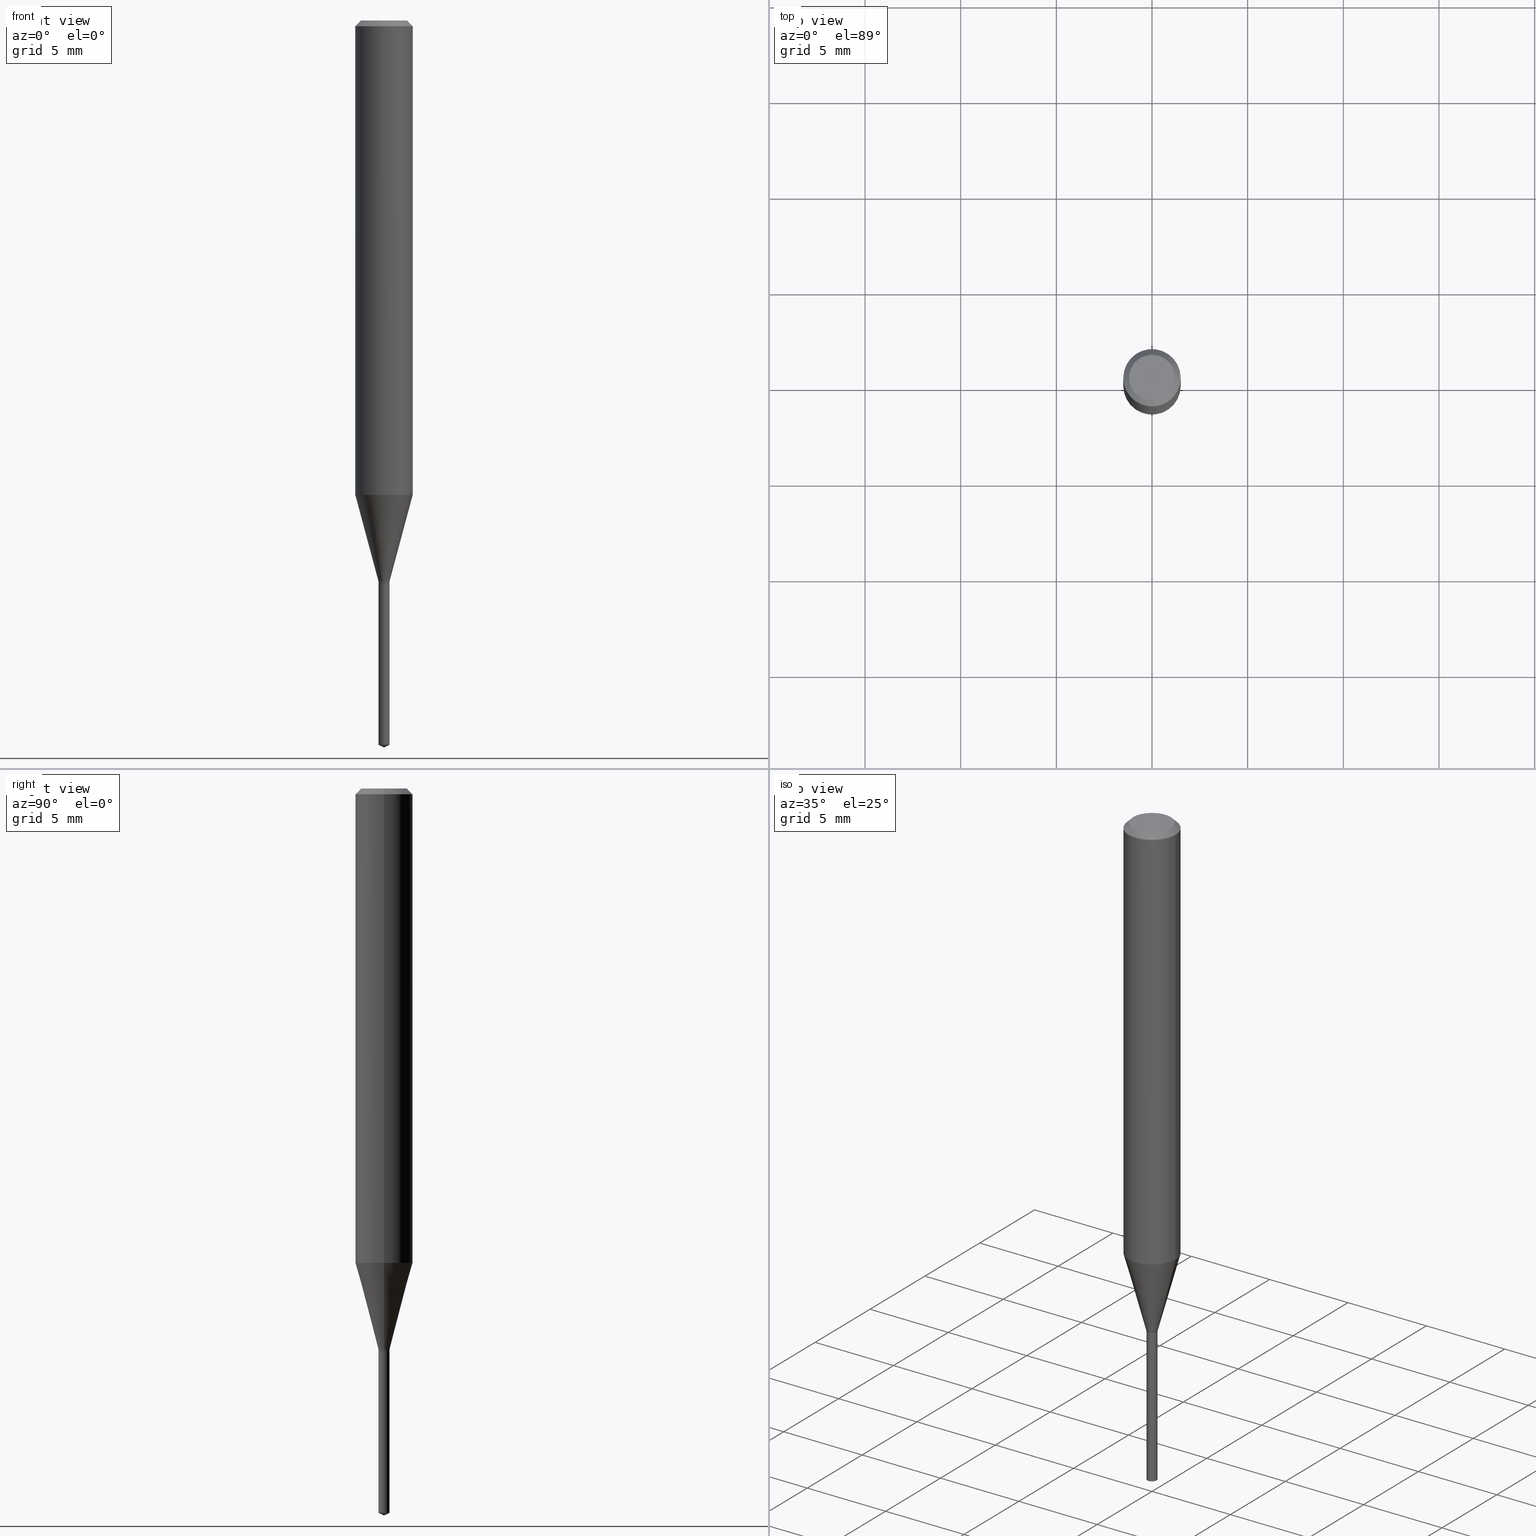
[diagram: canonical four-view strip — front | top / right | iso, engineering-drawing reading convention]
A machine part, canonical four-view strip (front | top / right | iso — engineering-drawing reading convention). The complete STEP part file that produces these views, byte-faithful:
ISO-10303-21;
HEADER;
FILE_DESCRIPTION (( 'STEP AP203' ),
    '1' );
FILE_NAME ('07777.STEP',
    '2024-04-24T02:48:42',
    ( '' ),
    ( '' ),
    'SwSTEP 2.0',
    'SolidWorks 2023',
    '' );
FILE_SCHEMA (( 'CONFIG_CONTROL_DESIGN' ));
ENDSEC;

DATA;
#1 = CARTESIAN_POINT ( 'NONE',  ( 0.05904999999999999832, -4.535783407291118600E-16, -0.01181000000000007565 ) ) ;
#2 = CC_DESIGN_PERSON_AND_ORGANIZATION_ASSIGNMENT ( #76, #336, ( #120 ) ) ;
#3 = ORIENTED_EDGE ( 'NONE', *, *, #462, .T. ) ;
#4 = CALENDAR_DATE ( 2024, 23, 4 ) ;
#5 = DIRECTION ( 'NONE',  ( -2.445468806185136597E-29, 3.491481338843145583E-15, 1.000000000000000000 ) ) ;
#6 = CARTESIAN_POINT ( 'NONE',  ( 8.100187187668790892E-17, 0.01139999999999595851, -1.157499999999999973 ) ) ;
#7 = DIRECTION ( 'NONE',  ( -2.445457056059012515E-29, 3.491498165692530705E-15, 1.000000000000000000 ) ) ;
#8 = LENGTH_MEASURE_WITH_UNIT ( LENGTH_MEASURE( 0.02539999999999999897 ), #144 );
#9 = LINE ( 'NONE', #302, #279 ) ;
#10 = DIRECTION ( 'NONE',  ( -2.445468806185136597E-29, 3.491481338843145583E-15, 1.000000000000000000 ) ) ;
#11 = DIRECTION ( 'NONE',  ( -6.982962677686267499E-15, -1.000000000000000000, 3.520397390770301620E-15 ) ) ;
#12 = EDGE_CURVE ( 'NONE', #470, #401, #247, .T. ) ;
#13 = AXIS2_PLACEMENT_3D ( 'NONE', #86, #20, #433 ) ;
#14 = VECTOR ( 'NONE', #443, 39.37007874015748854 ) ;
#15 = VERTEX_POINT ( 'NONE', #134 ) ;
#16 = ORIENTED_EDGE ( 'NONE', *, *, #59, .F. ) ;
#17 = CONICAL_SURFACE ( 'NONE', #119, 84.42940631927798734, 1.134464013796332438 ) ;
#18 = EDGE_LOOP ( 'NONE', ( #125, #187, #281, #206 ) ) ;
#19 = CARTESIAN_POINT ( 'NONE',  ( 2.822315549218265928E-29, -4.029518613158873887E-15, -1.154099999999999904 ) ) ;
#20 = DIRECTION ( 'NONE',  ( 2.445468806185136597E-29, -3.491481338843145583E-15, -1.000000000000000000 ) ) ;
#21 = ORIENTED_EDGE ( 'NONE', *, *, #300, .F. ) ;
#22 = VECTOR ( 'NONE', #330, 39.37007874015748143 ) ;
#23 = CARTESIAN_POINT ( 'NONE',  ( 2.830630143159295633E-29, -4.041389649710940900E-15, -1.157499999999999973 ) ) ;
#24 = EDGE_LOOP ( 'NONE', ( #210, #326, #434 ) ) ;
#25 = CARTESIAN_POINT ( 'NONE',  ( 8.100187187668787195E-17, 0.01139999999999479277, -1.490784092697033270 ) ) ;
#26 = ADVANCED_FACE ( 'NONE', ( #435 ), #293, .F. ) ;
#27 = ORIENTED_EDGE ( 'NONE', *, *, #197, .F. ) ;
#28 = CIRCLE ( 'NONE', #52, 0.01090000000000000170 ) ;
#29 = DIRECTION ( 'NONE',  ( -2.445457056059012515E-29, 3.491498165692530705E-15, 1.000000000000000000 ) ) ;
#30 = CARTESIAN_POINT ( 'NONE',  ( 2.830630143159295633E-29, -4.041389649710940900E-15, -1.157499999999999973 ) ) ;
#31 = APPROVAL_DATE_TIME ( #446, #427 ) ;
#32 = PERSON_AND_ORGANIZATION ( #43, #139 ) ;
#33 = DIRECTION ( 'NONE',  ( -2.445468806185136597E-29, 3.491481338843145583E-15, 1.000000000000000000 ) ) ;
#34 = CIRCLE ( 'NONE', #93, 0.05905000000000013710 ) ;
#35 = DATE_AND_TIME ( #380, #292 ) ;
#36 = AXIS2_PLACEMENT_3D ( 'NONE', #307, #5, #68 ) ;
#37 = LINE ( 'NONE', #107, #436 ) ;
#38 = EDGE_CURVE ( 'NONE', #426, #127, #34, .T. ) ;
#39 = VERTEX_POINT ( 'NONE', #25 ) ;
#40 = LINE ( 'NONE', #231, #14 ) ;
#41 = CARTESIAN_POINT ( 'NONE',  ( 0.000000000000000000, 0.000000000000000000, 0.000000000000000000 ) ) ;
#42 = CC_DESIGN_PERSON_AND_ORGANIZATION_ASSIGNMENT ( #32, #342, ( #423 ) ) ;
#43 = PERSON ( 'UNSPECIFIED', 'UNSPECIFIED', 'UNSPECIFIED', ('UNSPECIFIED'), ('UNSPECIFIED'), ('UNSPECIFIED') ) ;
#44 = CARTESIAN_POINT ( 'NONE',  ( -9.261917495037615480E-28, 1.322369467758159045E-13, 37.87397874015748300 ) ) ;
#45 = LINE ( 'NONE', #463, #241 ) ;
#46 = APPROVAL_PERSON_ORGANIZATION ( #180, #181, #439 ) ;
#47 = FACE_OUTER_BOUND ( 'NONE', #368, .T. ) ;
#48 = CARTESIAN_POINT ( 'NONE',  ( 3.658648301569888039E-29, -5.223630405692595388E-15, -1.496099999999999985 ) ) ;
#49 = ORIENTED_EDGE ( 'NONE', *, *, #300, .T. ) ;
#50 = FACE_OUTER_BOUND ( 'NONE', #83, .T. ) ;
#51 = CIRCLE ( 'NONE', #333, 0.01140000000000000041 ) ;
#52 = AXIS2_PLACEMENT_3D ( 'NONE', #30, #148, #182 ) ;
#53 = ORIENTED_EDGE ( 'NONE', *, *, #462, .F. ) ;
#54 = DIRECTION ( 'NONE',  ( -2.445468806185136597E-29, 3.491481338843145583E-15, 1.000000000000000000 ) ) ;
#55 = CARTESIAN_POINT ( 'NONE',  ( 2.830630143159295633E-29, -4.041389649710940900E-15, -1.157499999999999973 ) ) ;
#56 = ADVANCED_FACE ( 'NONE', ( #297 ), #66, .T. ) ;
#57 = ORIENTED_EDGE ( 'NONE', *, *, #339, .T. ) ;
#58 = CARTESIAN_POINT ( 'NONE',  ( 2.830630143159295633E-29, -4.041389649710940900E-15, -1.157499999999999973 ) ) ;
#59 = EDGE_CURVE ( 'NONE', #401, #470, #167, .T. ) ;
#60 = EDGE_LOOP ( 'NONE', ( #21, #166, #157, #27 ) ) ;
#61 = CONICAL_SURFACE ( 'NONE', #178, 0.01090000000000000170, 0.7853981633974119747 ) ;
#62 = DIRECTION ( 'NONE',  ( -2.445468806185136597E-29, 3.491481338843145583E-15, 1.000000000000000000 ) ) ;
#63 = CARTESIAN_POINT ( 'NONE',  ( -7.960577452559512197E-17, -0.01140000000000404232, -1.157499999999999973 ) ) ;
#64 = CYLINDRICAL_SURFACE ( 'NONE', #160, 0.01140000000000000041 ) ;
#65 = COORDINATED_UNIVERSAL_TIME_OFFSET ( 5, 0, .BEHIND. ) ;
#66 = CYLINDRICAL_SURFACE ( 'NONE', #381, 0.05905000000000006771 ) ;
#67 = APPROVAL_DATE_TIME ( #109, #400 ) ;
#68 = DIRECTION ( 'NONE',  ( 1.000000000000000000, -6.982962677686272233E-15, 0.000000000000000000 ) ) ;
#69 = CIRCLE ( 'NONE', #361, 0.05905000000000013710 ) ;
#70 = CARTESIAN_POINT ( 'NONE',  ( 2.829407408756202832E-29, -4.039643909041518608E-15, -1.156999999999999806 ) ) ;
#71 = ADVANCED_FACE ( 'NONE', ( #208 ), #354, .T. ) ;
#72 = DIRECTION ( 'NONE',  ( 1.000000000000000000, -6.982962677686266711E-15, 4.876185090822587894E-29 ) ) ;
#73 = COORDINATED_UNIVERSAL_TIME_OFFSET ( 5, 0, .BEHIND. ) ;
#74 = PLANE ( 'NONE',  #421 ) ;
#75 = AXIS2_PLACEMENT_3D ( 'NONE', #487, #418, #373 ) ;
#76 = PERSON_AND_ORGANIZATION ( #43, #139 ) ;
#77 = AXIS2_PLACEMENT_3D ( 'NONE', #191, #273, #459 ) ;
#78 = EDGE_CURVE ( 'NONE', #164, #401, #9, .T. ) ;
#79 = AXIS2_PLACEMENT_3D ( 'NONE', #202, #10, #233 ) ;
#80 = ORIENTED_EDGE ( 'NONE', *, *, #313, .T. ) ;
#81 = PRODUCT_RELATED_PRODUCT_CATEGORY ( 'detail', '', ( #423 ) ) ;
#82 = ORIENTED_EDGE ( 'NONE', *, *, #321, .F. ) ;
#83 = EDGE_LOOP ( 'NONE', ( #429, #367, #397, #82 ) ) ;
#84 = AXIS2_PLACEMENT_3D ( 'NONE', #466, #424, #275 ) ;
#85 = EDGE_LOOP ( 'NONE', ( #393, #108, #203 ) ) ;
#86 = CARTESIAN_POINT ( 'NONE',  ( 2.888098660104664642E-31, -4.123439461173780879E-17, -0.01181000000000007565 ) ) ;
#87 = EDGE_CURVE ( 'NONE', #426, #121, #37, .T. ) ;
#88 = ORIENTED_EDGE ( 'NONE', *, *, #122, .T. ) ;
#89 = ORIENTED_EDGE ( 'NONE', *, *, #260, .F. ) ;
#90 = EDGE_CURVE ( 'NONE', #127, #426, #69, .T. ) ;
#91 = APPROVAL_STATUS ( 'not_yet_approved' ) ;
#92 = VERTEX_POINT ( 'NONE', #6 ) ;
#93 = AXIS2_PLACEMENT_3D ( 'NONE', #407, #62, #212 ) ;
#94 = CONICAL_SURFACE ( 'NONE', #36, 0.01140000000000000041, 0.2617993877991499629 ) ;
#95 = LOCAL_TIME ( 22, 48, 42.00000000000000000, #149 ) ;
#96 = EDGE_LOOP ( 'NONE', ( #163, #308, #118, #200 ) ) ;
#97 = DIRECTION ( 'NONE',  ( -0.2588190451025212391, 5.211531920934549464E-15, 0.9659258262890679791 ) ) ;
#98 = DIRECTION ( 'NONE',  ( -6.982962677686265922E-15, -1.000000000000000000, 0.000000000000000000 ) ) ;
#99 = CARTESIAN_POINT ( 'NONE',  ( -0.05905000000000015098, -2.989045246693538813E-15, -0.9762677790193426963 ) ) ;
#100 = ORIENTED_EDGE ( 'NONE', *, *, #237, .T. ) ;
#101 =( NAMED_UNIT ( * ) PLANE_ANGLE_UNIT ( ) SI_UNIT ( $, .RADIAN. ) );
#102 = CARTESIAN_POINT ( 'NONE',  ( 4.132873053354867254E-48, -5.900647395337818946E-34, -1.690012582823346072E-19 ) ) ;
#103 = CARTESIAN_POINT ( 'NONE',  ( 0.01140000000000000041, -7.960577452562343468E-17, 5.558841524407367652E-31 ) ) ;
#104 = DIRECTION ( 'NONE',  ( -2.445457056059012515E-29, 3.491498165692530705E-15, 1.000000000000000000 ) ) ;
#105 = DIRECTION ( 'NONE',  ( 2.445457056059012235E-29, -3.491498165692530705E-15, -1.000000000000000000 ) ) ;
#106 = PERSON_AND_ORGANIZATION ( #43, #139 ) ;
#107 = CARTESIAN_POINT ( 'NONE',  ( -0.05905000000000006771, 4.195754854663396409E-16, -2.904631170795525045E-30 ) ) ;
#108 = ORIENTED_EDGE ( 'NONE', *, *, #347, .T. ) ;
#109 = DATE_AND_TIME ( #4, #406 ) ;
#110 = EDGE_CURVE ( 'NONE', #242, #322, #227, .T. ) ;
#111 = DIRECTION ( 'NONE',  ( -1.000000000000000000, 6.982962677686266711E-15, 0.000000000000000000 ) ) ;
#112 = VECTOR ( 'NONE', #377, 39.37007874015748143 ) ;
#113 = CIRCLE ( 'NONE', #236, 0.05904999999999999832 ) ;
#114 = CARTESIAN_POINT ( 'NONE',  ( 0.01090000000000000170, -4.117503942897720823E-15, -1.157499999999999973 ) ) ;
#115 = DIRECTION ( 'NONE',  ( -2.445457056059012515E-29, 3.491498165692530705E-15, 1.000000000000000000 ) ) ;
#116 = DIRECTION ( 'NONE',  ( 6.439704144417078474E-15, 0.9063077870366591515, 0.4226182617406797903 ) ) ;
#117 = ADVANCED_FACE ( 'NONE', ( #484 ), #74, .F. ) ;
#118 = ORIENTED_EDGE ( 'NONE', *, *, #90, .F. ) ;
#119 = AXIS2_PLACEMENT_3D ( 'NONE', #44, #159, #11 ) ;
#120 = PRODUCT_DEFINITION_FORMATION_WITH_SPECIFIED_SOURCE ( 'ANY', '', #423, .NOT_KNOWN. ) ;
#121 = VERTEX_POINT ( 'NONE', #226 ) ;
#122 = EDGE_CURVE ( 'NONE', #164, #287, #51, .T. ) ;
#123 = ORIENTED_EDGE ( 'NONE', *, *, #266, .T. ) ;
#124 = EDGE_CURVE ( 'NONE', #39, #92, #154, .T. ) ;
#125 = ORIENTED_EDGE ( 'NONE', *, *, #339, .F. ) ;
#126 = VECTOR ( 'NONE', #97, 39.37007874015748854 ) ;
#127 = VERTEX_POINT ( 'NONE', #451 ) ;
#128 = LOCAL_TIME ( 22, 48, 42.00000000000000000, #376 ) ;
#129 = ADVANCED_FACE ( 'NONE', ( #225 ), #379, .T. ) ;
#130 = CARTESIAN_POINT ( 'NONE',  ( -0.01140000000000000041, -3.953579389223544676E-15, -1.154099999999999904 ) ) ;
#131 = VERTEX_POINT ( 'NONE', #48 ) ;
#132 = DIRECTION ( 'NONE',  ( -2.445468806185136597E-29, 3.491481338843145583E-15, 1.000000000000000000 ) ) ;
#133 = PERSON_AND_ORGANIZATION ( #43, #139 ) ;
#134 = CARTESIAN_POINT ( 'NONE',  ( -7.960577452559512197E-17, -0.01140000000000404232, -1.157499999999999973 ) ) ;
#135 = DIRECTION ( 'NONE',  ( -2.445468806185136877E-29, 3.491481338843145188E-15, 1.000000000000000000 ) ) ;
#136 = DIRECTION ( 'NONE',  ( -2.445468806185136597E-29, 3.491481338843145583E-15, 1.000000000000000000 ) ) ;
#137 = AXIS2_PLACEMENT_3D ( 'NONE', #335, #481, #441 ) ;
#138 = CIRCLE ( 'NONE', #474, 0.01140000000000000041 ) ;
#139 = ORGANIZATION ( 'UNSPECIFIED', 'UNSPECIFIED', '' ) ;
#140 = CARTESIAN_POINT ( 'NONE',  ( 0.05904999999999999832, -4.463468013801466955E-16, -0.01181000000000007565 ) ) ;
#141 = VERTEX_POINT ( 'NONE', #359 ) ;
#142 = FACE_OUTER_BOUND ( 'NONE', #419, .T. ) ;
#143 = DIRECTION ( 'NONE',  ( 0.000000000000000000, 0.000000000000000000, 1.000000000000000000 ) ) ;
#144 =( LENGTH_UNIT ( ) NAMED_UNIT ( * ) SI_UNIT ( $, .METRE. ) );
#145 = DESIGN_CONTEXT ( 'detailed design', #445, 'design' ) ;
#146 = VECTOR ( 'NONE', #135, 39.37007874015748143 ) ;
#147 = CC_DESIGN_APPROVAL ( #427, ( #490 ) ) ;
#148 = DIRECTION ( 'NONE',  ( -2.445468806185136597E-29, 3.491481338843145583E-15, 1.000000000000000000 ) ) ;
#149 = COORDINATED_UNIVERSAL_TIME_OFFSET ( 5, 0, .BEHIND. ) ;
#150 = FACE_OUTER_BOUND ( 'NONE', #174, .T. ) ;
#151 = LINE ( 'NONE', #228, #205 ) ;
#152 = EDGE_LOOP ( 'NONE', ( #329, #472 ) ) ;
#153 = DIRECTION ( 'NONE',  ( -2.445457056059012515E-29, 3.491498165692530705E-15, 1.000000000000000000 ) ) ;
#154 = LINE ( 'NONE', #221, #112 ) ;
#155 = CARTESIAN_POINT ( 'NONE',  ( 2.387432400075446825E-29, -3.408620732159878700E-15, -0.9762677790193426963 ) ) ;
#156 = ADVANCED_FACE ( 'NONE', ( #161 ), #386, .T. ) ;
#157 = ORIENTED_EDGE ( 'NONE', *, *, #209, .T. ) ;
#158 = ORIENTED_EDGE ( 'NONE', *, *, #399, .F. ) ;
#159 = DIRECTION ( 'NONE',  ( -2.445457056059012515E-29, 3.491498165692530705E-15, 1.000000000000000000 ) ) ;
#160 = AXIS2_PLACEMENT_3D ( 'NONE', #298, #104, #442 ) ;
#161 = FACE_OUTER_BOUND ( 'NONE', #384, .T. ) ;
#162 = AXIS2_PLACEMENT_3D ( 'NONE', #338, #143, #220 ) ;
#163 = ORIENTED_EDGE ( 'NONE', *, *, #12, .T. ) ;
#164 = VERTEX_POINT ( 'NONE', #192 ) ;
#165 = CC_DESIGN_PERSON_AND_ORGANIZATION_ASSIGNMENT ( #264, #420, ( #120 ) ) ;
#166 = ORIENTED_EDGE ( 'NONE', *, *, #399, .T. ) ;
#167 = CIRCLE ( 'NONE', #137, 0.01140000000000000041 ) ;
#168 = APPROVAL_PERSON_ORGANIZATION ( #133, #427, #328 ) ;
#169 = EDGE_LOOP ( 'NONE', ( #318, #49 ) ) ;
#170 = ADVANCED_FACE ( 'NONE', ( #183 ), #265, .F. ) ;
#171 = FACE_OUTER_BOUND ( 'NONE', #360, .T. ) ;
#172 = ORIENTED_EDGE ( 'NONE', *, *, #204, .T. ) ;
#173 = CARTESIAN_POINT ( 'NONE',  ( -0.04724000000000000421, 3.504923541997677355E-16, -3.380025165670481712E-19 ) ) ;
#174 = EDGE_LOOP ( 'NONE', ( #240, #214, #438, #263 ) ) ;
#175 = DIRECTION ( 'NONE',  ( -2.445457056059012515E-29, 3.491498165692530705E-15, 1.000000000000000000 ) ) ;
#176 = EDGE_CURVE ( 'NONE', #127, #325, #310, .T. ) ;
#177 = DIRECTION ( 'NONE',  ( 1.000000000000000000, -6.982962677686266711E-15, 4.876176775795936353E-29 ) ) ;
#178 = AXIS2_PLACEMENT_3D ( 'NONE', #471, #278, #346 ) ;
#179 = DIRECTION ( 'NONE',  ( 0.7071067811865218156, -2.468850131081987665E-15, 0.7071067811865732189 ) ) ;
#180 = PERSON_AND_ORGANIZATION ( #43, #139 ) ;
#181 = APPROVAL ( #417, 'UNSPECIFIED' ) ;
#182 = DIRECTION ( 'NONE',  ( 1.000000000000000000, -6.982962677686269866E-15, 0.000000000000000000 ) ) ;
#183 = FACE_OUTER_BOUND ( 'NONE', #432, .T. ) ;
#184 = ADVANCED_FACE ( 'NONE', ( #150 ), #94, .T. ) ;
#185 = ADVANCED_FACE ( 'NONE', ( #452 ), #17, .T. ) ;
#186 = AXIS2_PLACEMENT_3D ( 'NONE', #270, #201, #111 ) ;
#187 = ORIENTED_EDGE ( 'NONE', *, *, #110, .T. ) ;
#188 = PERSON_AND_ORGANIZATION ( #43, #139 ) ;
#189 = DIRECTION ( 'NONE',  ( -2.445468806185136877E-29, 3.491481338843145188E-15, 1.000000000000000000 ) ) ;
#190 = FACE_OUTER_BOUND ( 'NONE', #24, .T. ) ;
#191 = CARTESIAN_POINT ( 'NONE',  ( 2.829407408756202832E-29, -4.039643909041518608E-15, -1.156999999999999806 ) ) ;
#192 = CARTESIAN_POINT ( 'NONE',  ( -0.01140000000000000041, -3.953579389223544676E-15, -1.156999999999999806 ) ) ;
#193 = DIRECTION ( 'NONE',  ( -6.982962677686265922E-15, -1.000000000000000000, 0.000000000000000000 ) ) ;
#194 = LINE ( 'NONE', #267, #467 ) ;
#195 = VECTOR ( 'NONE', #403, 39.37007874015748143 ) ;
#196 = LOCAL_TIME ( 22, 48, 42.00000000000000000, #65 ) ;
#197 = EDGE_CURVE ( 'NONE', #198, #121, #45, .T. ) ;
#198 = VERTEX_POINT ( 'NONE', #173 ) ;
#199 = DIRECTION ( 'NONE',  ( -2.445468806185136597E-29, 3.491481338843145583E-15, 1.000000000000000000 ) ) ;
#200 = ORIENTED_EDGE ( 'NONE', *, *, #404, .F. ) ;
#201 = DIRECTION ( 'NONE',  ( 2.445468806185136597E-29, -3.491481338843145583E-15, -1.000000000000000000 ) ) ;
#202 = CARTESIAN_POINT ( 'NONE',  ( 8.265746106709734507E-48, -1.180129479067563789E-33, -3.380025165646692144E-19 ) ) ;
#203 = ORIENTED_EDGE ( 'NONE', *, *, #266, .F. ) ;
#204 = EDGE_CURVE ( 'NONE', #92, #15, #268, .T. ) ;
#205 = VECTOR ( 'NONE', #312, 39.37007874015748143 ) ;
#206 = ORIENTED_EDGE ( 'NONE', *, *, #122, .F. ) ;
#207 = CC_DESIGN_PERSON_AND_ORGANIZATION_ASSIGNMENT ( #388, #294, ( #490 ) ) ;
#208 = FACE_OUTER_BOUND ( 'NONE', #96, .T. ) ;
#209 = EDGE_CURVE ( 'NONE', #325, #121, #280, .T. ) ;
#210 = ORIENTED_EDGE ( 'NONE', *, *, #347, .F. ) ;
#211 = ORIENTED_EDGE ( 'NONE', *, *, #197, .T. ) ;
#212 = DIRECTION ( 'NONE',  ( 1.000000000000000000, -6.982962677686264344E-15, 0.000000000000000000 ) ) ;
#213 = FACE_OUTER_BOUND ( 'NONE', #464, .T. ) ;
#214 = ORIENTED_EDGE ( 'NONE', *, *, #59, .T. ) ;
#215 = EDGE_CURVE ( 'NONE', #322, #287, #369, .T. ) ;
#216 =( CONVERSION_BASED_UNIT ( 'INCH', #8 ) LENGTH_UNIT ( ) NAMED_UNIT ( #320 ) );
#217 = CALENDAR_DATE ( 2024, 23, 4 ) ;
#218 = AXIS2_PLACEMENT_3D ( 'NONE', #246, #54, #398 ) ;
#219 = LINE ( 'NONE', #103, #146 ) ;
#220 = DIRECTION ( 'NONE',  ( 1.000000000000000000, 0.000000000000000000, 0.000000000000000000 ) ) ;
#221 = CARTESIAN_POINT ( 'NONE',  ( 8.100187187667972449E-17, 0.01139999999999595851, -1.157499999999999973 ) ) ;
#222 = CARTESIAN_POINT ( 'NONE',  ( 0.01090000000000000170, -4.117503942897720823E-15, -1.157499999999999973 ) ) ;
#223 = DIRECTION ( 'NONE',  ( -2.445468806185136597E-29, 3.491481338843145583E-15, 1.000000000000000000 ) ) ;
#224 = ADVANCED_FACE ( 'NONE', ( #142 ), #64, .T. ) ;
#225 = FACE_OUTER_BOUND ( 'NONE', #454, .T. ) ;
#226 = CARTESIAN_POINT ( 'NONE',  ( -0.05904999999999999832, -1.305352077919467933E-15, -0.01181000000000007565 ) ) ;
#227 = CIRCLE ( 'NONE', #75, 0.01090000000000000170 ) ;
#228 = CARTESIAN_POINT ( 'NONE',  ( -0.01090000000000000170, -3.963940491513089833E-15, -1.157499999999999973 ) ) ;
#229 = CIRCLE ( 'NONE', #334, 0.01140000000000000041 ) ;
#230 = ORIENTED_EDGE ( 'NONE', *, *, #124, .F. ) ;
#231 = CARTESIAN_POINT ( 'NONE',  ( 3.658648301569888039E-29, -5.223630405692593810E-15, -1.496099999999999985 ) ) ;
#232 = ADVANCED_BREP_SHAPE_REPRESENTATION ( '07777', ( #457, #288, #162 ), #258 ) ;
#233 = DIRECTION ( 'NONE',  ( 1.000000000000000000, -6.982962677686266711E-15, 4.876185090822587894E-29 ) ) ;
#234 = ADVANCED_FACE ( 'NONE', ( #213 ), #341, .T. ) ;
#235 = AXIS2_PLACEMENT_3D ( 'NONE', #19, #453, #311 ) ;
#236 = AXIS2_PLACEMENT_3D ( 'NONE', #455, #199, #385 ) ;
#237 = EDGE_CURVE ( 'NONE', #322, #242, #28, .T. ) ;
#238 = ORIENTED_EDGE ( 'NONE', *, *, #313, .F. ) ;
#239 = CC_DESIGN_DATE_AND_TIME_ASSIGNMENT ( #372, #252, ( #490 ) ) ;
#240 = ORIENTED_EDGE ( 'NONE', *, *, #316, .F. ) ;
#241 = VECTOR ( 'NONE', #395, 39.37007874015748143 ) ;
#242 = VERTEX_POINT ( 'NONE', #485 ) ;
#243 = CC_DESIGN_PERSON_AND_ORGANIZATION_ASSIGNMENT ( #106, #259, ( #269 ) ) ;
#244 = CARTESIAN_POINT ( 'NONE',  ( 0.01140000000000000041, -4.109124387684497606E-15, -1.154099999999999904 ) ) ;
#245 = ORIENTED_EDGE ( 'NONE', *, *, #209, .F. ) ;
#246 = CARTESIAN_POINT ( 'NONE',  ( 0.000000000000000000, 0.000000000000000000, 0.000000000000000000 ) ) ;
#247 = CIRCLE ( 'NONE', #289, 0.01140000000000000041 ) ;
#248 = DIRECTION ( 'NONE',  ( 1.000000000000000000, -6.982962677686265922E-15, 4.876176775795935793E-29 ) ) ;
#249 = ORIENTED_EDGE ( 'NONE', *, *, #124, .T. ) ;
#250 = COORDINATED_UNIVERSAL_TIME_OFFSET ( 5, 0, .BEHIND. ) ;
#251 = DIRECTION ( 'NONE',  ( 6.982962677686265922E-15, 1.000000000000000000, -3.491498165692530705E-15 ) ) ;
#252 = DATE_TIME_ROLE ( 'classification_date' ) ;
#253 = DIRECTION ( 'NONE',  ( 1.000000000000000000, -6.982962677686272233E-15, 0.000000000000000000 ) ) ;
#254 =( NAMED_UNIT ( * ) SI_UNIT ( $, .STERADIAN. ) SOLID_ANGLE_UNIT ( ) );
#255 = SHAPE_DEFINITION_REPRESENTATION ( #353, #232 ) ;
#256 = DIRECTION ( 'NONE',  ( 2.438088387897960049E-29, -3.491481338843145188E-15, -1.000000000000000000 ) ) ;
#257 = AXIS2_PLACEMENT_3D ( 'NONE', #23, #132, #285 ) ;
#258 =( GEOMETRIC_REPRESENTATION_CONTEXT ( 3 ) GLOBAL_UNCERTAINTY_ASSIGNED_CONTEXT ( ( #428 ) ) GLOBAL_UNIT_ASSIGNED_CONTEXT ( ( #216, #101, #254 ) ) REPRESENTATION_CONTEXT ( 'NONE', 'WORKASPACE' ) );
#259 = PERSON_AND_ORGANIZATION_ROLE ( 'creator' ) ;
#260 = EDGE_CURVE ( 'NONE', #198, #141, #382, .T. ) ;
#261 = DIRECTION ( 'NONE',  ( -2.445468806185136877E-29, 3.491481338843145188E-15, 1.000000000000000000 ) ) ;
#262 = DIRECTION ( 'NONE',  ( -2.445457056059012515E-29, 3.491498165692530705E-15, 1.000000000000000000 ) ) ;
#263 = ORIENTED_EDGE ( 'NONE', *, *, #38, .F. ) ;
#264 = PERSON_AND_ORGANIZATION ( #43, #139 ) ;
#265 = PLANE ( 'NONE',  #437 ) ;
#266 = EDGE_CURVE ( 'NONE', #370, #39, #229, .T. ) ;
#267 = CARTESIAN_POINT ( 'NONE',  ( 3.658675741637279389E-29, -5.223591451536267840E-15, -1.496099999999999985 ) ) ;
#268 = CIRCLE ( 'NONE', #391, 0.01140000000000000041 ) ;
#269 = PRODUCT_DEFINITION ( 'UNKNOWN', '', #120, #145 ) ;
#270 = CARTESIAN_POINT ( 'NONE',  ( 2.888098660104664642E-31, -4.123439461173780879E-17, -0.01181000000000007565 ) ) ;
#271 = CARTESIAN_POINT ( 'NONE',  ( -7.960577452558696219E-17, -0.01140000000000520632, -1.490784092697033270 ) ) ;
#272 = ORIENTED_EDGE ( 'NONE', *, *, #286, .F. ) ;
#273 = DIRECTION ( 'NONE',  ( -2.445468806185136597E-29, 3.491481338843145583E-15, 1.000000000000000000 ) ) ;
#274 = CONICAL_SURFACE ( 'NONE', #479, 84.42940631927798734, 1.134464013796332438 ) ;
#275 = DIRECTION ( 'NONE',  ( 1.000000000000000000, -6.982962677686265922E-15, 4.876176775795936353E-29 ) ) ;
#276 = ORIENTED_EDGE ( 'NONE', *, *, #90, .T. ) ;
#277 = ORIENTED_EDGE ( 'NONE', *, *, #215, .F. ) ;
#278 = DIRECTION ( 'NONE',  ( -2.445468806185136597E-29, 3.491481338843145583E-15, 1.000000000000000000 ) ) ;
#279 = VECTOR ( 'NONE', #261, 39.37007874015748143 ) ;
#280 = CIRCLE ( 'NONE', #460, 0.05904999999999999832 ) ;
#281 = ORIENTED_EDGE ( 'NONE', *, *, #215, .T. ) ;
#282 = EDGE_CURVE ( 'NONE', #121, #325, #113, .T. ) ;
#283 = LINE ( 'NONE', #244, #425 ) ;
#284 = DIRECTION ( 'NONE',  ( -2.438088387897960049E-29, 3.491481338843145188E-15, 1.000000000000000000 ) ) ;
#285 = DIRECTION ( 'NONE',  ( 1.000000000000000000, -6.982962677686269866E-15, 0.000000000000000000 ) ) ;
#286 = EDGE_CURVE ( 'NONE', #287, #164, #291, .T. ) ;
#287 = VERTEX_POINT ( 'NONE', #357 ) ;
#288 = MANIFOLD_SOLID_BREP ( 'Body-Move/Copy2[2]', #314 ) ;
#289 = AXIS2_PLACEMENT_3D ( 'NONE', #478, #136, #253 ) ;
#290 = EDGE_CURVE ( 'NONE', #39, #370, #489, .T. ) ;
#291 = CIRCLE ( 'NONE', #77, 0.01140000000000000041 ) ;
#292 = LOCAL_TIME ( 22, 48, 42.00000000000000000, #73 ) ;
#293 = PLANE ( 'NONE',  #390 ) ;
#294 = PERSON_AND_ORGANIZATION_ROLE ( 'classification_officer' ) ;
#295 = DIRECTION ( 'NONE',  ( 1.000000000000000000, -6.982962677686266711E-15, 0.000000000000000000 ) ) ;
#296 = CARTESIAN_POINT ( 'NONE',  ( 2.830630143159295633E-29, -4.041389649710940900E-15, -1.157499999999999973 ) ) ;
#297 = FACE_OUTER_BOUND ( 'NONE', #348, .T. ) ;
#298 = CARTESIAN_POINT ( 'NONE',  ( 2.830630143159295633E-29, -4.041389649710940900E-15, -1.157499999999999973 ) ) ;
#299 = DATE_TIME_ROLE ( 'creation_date' ) ;
#300 = EDGE_CURVE ( 'NONE', #141, #198, #355, .T. ) ;
#301 = APPLICATION_PROTOCOL_DEFINITION ( 'international standard', 'config_control_design', 1994, #445 ) ;
#302 = CARTESIAN_POINT ( 'NONE',  ( -0.01140000000000000041, 8.100187187665142411E-17, -5.607586002890593045E-31 ) ) ;
#303 = CONICAL_SURFACE ( 'NONE', #13, 0.05904999999999999832, 0.7853981633974450594 ) ;
#304 = APPROVAL_PERSON_ORGANIZATION ( #188, #400, #349 ) ;
#305 = ADVANCED_FACE ( 'NONE', ( #430 ), #61, .T. ) ;
#306 = CARTESIAN_POINT ( 'NONE',  ( 0.01140000000000000041, -4.109124387684497606E-15, -1.154099999999999904 ) ) ;
#307 = CARTESIAN_POINT ( 'NONE',  ( 2.822315549218265928E-29, -4.029518613158873887E-15, -1.154099999999999904 ) ) ;
#308 = ORIENTED_EDGE ( 'NONE', *, *, #316, .T. ) ;
#309 = CARTESIAN_POINT ( 'NONE',  ( 3.645662079317481238E-29, -5.205050448017132206E-15, -1.490784092697033270 ) ) ;
#310 = LINE ( 'NONE', #350, #365 ) ;
#311 = DIRECTION ( 'NONE',  ( 1.000000000000000000, -6.982962677686272233E-15, 0.000000000000000000 ) ) ;
#312 = DIRECTION ( 'NONE',  ( -0.7071067811865218156, 7.493145998870261075E-15, 0.7071067811865732189 ) ) ;
#313 = EDGE_CURVE ( 'NONE', #370, #15, #408, .T. ) ;
#314 = CLOSED_SHELL ( 'NONE', ( #415, #392, #156, #71, #389, #129, #184, #56, #327, #117, #26, #305 ) ) ;
#315 = ORIENTED_EDGE ( 'NONE', *, *, #38, .T. ) ;
#316 = EDGE_CURVE ( 'NONE', #401, #426, #482, .T. ) ;
#317 = APPLICATION_CONTEXT ( 'configuration controlled 3d designs of mechanical parts and assemblies' ) ;
#318 = ORIENTED_EDGE ( 'NONE', *, *, #260, .T. ) ;
#319 = VECTOR ( 'NONE', #179, 39.37007874015748143 ) ;
#320 = DIMENSIONAL_EXPONENTS ( 1.000000000000000000, 0.000000000000000000, 0.000000000000000000, 0.000000000000000000, 0.000000000000000000, 0.000000000000000000, 0.000000000000000000 ) ;
#321 = EDGE_CURVE ( 'NONE', #287, #470, #219, .T. ) ;
#322 = VERTEX_POINT ( 'NONE', #114 ) ;
#323 = ORIENTED_EDGE ( 'NONE', *, *, #290, .T. ) ;
#324 = CC_DESIGN_APPROVAL ( #400, ( #120 ) ) ;
#325 = VERTEX_POINT ( 'NONE', #1 ) ;
#326 = ORIENTED_EDGE ( 'NONE', *, *, #465, .T. ) ;
#327 = ADVANCED_FACE ( 'NONE', ( #47 ), #344, .T. ) ;
#328 = APPROVAL_ROLE ( '' ) ;
#329 = ORIENTED_EDGE ( 'NONE', *, *, #237, .F. ) ;
#330 = DIRECTION ( 'NONE',  ( -2.445457056059012515E-29, 3.491498165692530705E-15, 1.000000000000000000 ) ) ;
#331 = CC_DESIGN_DATE_AND_TIME_ASSIGNMENT ( #35, #299, ( #269 ) ) ;
#332 = DIRECTION ( 'NONE',  ( -6.982962677686265922E-15, -1.000000000000000000, 0.000000000000000000 ) ) ;
#333 = AXIS2_PLACEMENT_3D ( 'NONE', #70, #414, #387 ) ;
#334 = AXIS2_PLACEMENT_3D ( 'NONE', #309, #175, #332 ) ;
#335 = CARTESIAN_POINT ( 'NONE',  ( 2.822315549218265928E-29, -4.029518613158873887E-15, -1.154099999999999904 ) ) ;
#336 = PERSON_AND_ORGANIZATION_ROLE ( 'design_supplier' ) ;
#337 = CARTESIAN_POINT ( 'NONE',  ( 2.888098660104664642E-31, -4.123439461173780879E-17, -0.01181000000000007565 ) ) ;
#338 = CARTESIAN_POINT ( 'NONE',  ( 0.000000000000000000, 0.000000000000000000, 0.000000000000000000 ) ) ;
#339 = EDGE_CURVE ( 'NONE', #242, #164, #151, .T. ) ;
#340 = CARTESIAN_POINT ( 'NONE',  ( -0.01140000000000000041, -3.948516741282222710E-15, -1.154099999999999904 ) ) ;
#341 = CYLINDRICAL_SURFACE ( 'NONE', #431, 0.01140000000000000041 ) ;
#342 = PERSON_AND_ORGANIZATION_ROLE ( 'design_owner' ) ;
#343 = DIRECTION ( 'NONE',  ( -2.445468806185136597E-29, 3.491481338843145583E-15, 1.000000000000000000 ) ) ;
#344 = CONICAL_SURFACE ( 'NONE', #186, 0.05904999999999999832, 0.7853981633974450594 ) ;
#345 = CC_DESIGN_SECURITY_CLASSIFICATION ( #490, ( #120 ) ) ;
#346 = DIRECTION ( 'NONE',  ( 1.000000000000000000, -6.982962677686269866E-15, 0.000000000000000000 ) ) ;
#347 = EDGE_CURVE ( 'NONE', #131, #39, #194, .T. ) ;
#348 = EDGE_LOOP ( 'NONE', ( #358, #315, #405, #477 ) ) ;
#349 = APPROVAL_ROLE ( '' ) ;
#350 = CARTESIAN_POINT ( 'NONE',  ( 0.05905000000000006771, -4.123439461173745257E-16, 2.879382386107503723E-30 ) ) ;
#351 = CARTESIAN_POINT ( 'NONE',  ( -9.261917495037615480E-28, 1.322369467758159045E-13, 37.87397874015748300 ) ) ;
#352 = APPLICATION_PROTOCOL_DEFINITION ( 'international standard', 'config_control_design', 1994, #317 ) ;
#353 = PRODUCT_DEFINITION_SHAPE ( 'NONE', 'NONE',  #269 ) ;
#354 = CONICAL_SURFACE ( 'NONE', #235, 0.01140000000000000041, 0.2617993877991499629 ) ;
#355 = CIRCLE ( 'NONE', #79, 0.04724000000000000421 ) ;
#356 = ORIENTED_EDGE ( 'NONE', *, *, #282, .T. ) ;
#357 = CARTESIAN_POINT ( 'NONE',  ( 0.01140000000000000041, -4.119249683567142326E-15, -1.156999999999999806 ) ) ;
#358 = ORIENTED_EDGE ( 'NONE', *, *, #87, .F. ) ;
#359 = CARTESIAN_POINT ( 'NONE',  ( 0.04724000000000000421, -3.852183633974369345E-16, -3.380025165621689721E-19 ) ) ;
#360 = EDGE_LOOP ( 'NONE', ( #100, #57, #272, #277 ) ) ;
#361 = AXIS2_PLACEMENT_3D ( 'NONE', #155, #343, #447 ) ;
#362 = FACE_OUTER_BOUND ( 'NONE', #60, .T. ) ;
#363 = CARTESIAN_POINT ( 'NONE',  ( 0.000000000000000000, 0.000000000000000000, 0.000000000000000000 ) ) ;
#364 = ORIENTED_EDGE ( 'NONE', *, *, #321, .T. ) ;
#365 = VECTOR ( 'NONE', #412, 39.37007874015748143 ) ;
#366 = DIRECTION ( 'NONE',  ( 0.2588190451025212391, 1.565188264969622362E-15, 0.9659258262890679791 ) ) ;
#367 = ORIENTED_EDGE ( 'NONE', *, *, #78, .T. ) ;
#368 = EDGE_LOOP ( 'NONE', ( #158, #89, #211, #356 ) ) ;
#369 = LINE ( 'NONE', #222, #319 ) ;
#370 = VERTEX_POINT ( 'NONE', #271 ) ;
#371 = DATE_AND_TIME ( #449, #95 ) ;
#372 = DATE_AND_TIME ( #480, #128 ) ;
#373 = DIRECTION ( 'NONE',  ( 1.000000000000000000, -6.982962677686269866E-15, 0.000000000000000000 ) ) ;
#374 = DIRECTION ( 'NONE',  ( -6.982962677686265922E-15, -1.000000000000000000, 0.000000000000000000 ) ) ;
#375 = APPROVAL_DATE_TIME ( #371, #181 ) ;
#376 = COORDINATED_UNIVERSAL_TIME_OFFSET ( 5, 0, .BEHIND. ) ;
#377 = DIRECTION ( 'NONE',  ( -2.445457056059012515E-29, 3.491498165692530705E-15, 1.000000000000000000 ) ) ;
#378 = CARTESIAN_POINT ( 'NONE',  ( 2.830630143159295633E-29, -4.041389649710940900E-15, -1.157499999999999973 ) ) ;
#379 = CYLINDRICAL_SURFACE ( 'NONE', #84, 0.01140000000000000041 ) ;
#380 = CALENDAR_DATE ( 2024, 23, 4 ) ;
#381 = AXIS2_PLACEMENT_3D ( 'NONE', #363, #409, #177 ) ;
#382 = CIRCLE ( 'NONE', #450, 0.04724000000000000421 ) ;
#383 = ADVANCED_FACE ( 'NONE', ( #190 ), #274, .T. ) ;
#384 = EDGE_LOOP ( 'NONE', ( #276, #469, #245, #468 ) ) ;
#385 = DIRECTION ( 'NONE',  ( 1.000000000000000000, -6.982962677686266711E-15, 0.000000000000000000 ) ) ;
#386 = CYLINDRICAL_SURFACE ( 'NONE', #422, 0.05905000000000006771 ) ;
#387 = DIRECTION ( 'NONE',  ( 1.000000000000000000, -6.982962677686272233E-15, 0.000000000000000000 ) ) ;
#388 = PERSON_AND_ORGANIZATION ( #43, #139 ) ;
#389 = ADVANCED_FACE ( 'NONE', ( #50 ), #476, .T. ) ;
#390 = AXIS2_PLACEMENT_3D ( 'NONE', #55, #284, #248 ) ;
#391 = AXIS2_PLACEMENT_3D ( 'NONE', #58, #29, #98 ) ;
#392 = ADVANCED_FACE ( 'NONE', ( #362 ), #303, .T. ) ;
#393 = ORIENTED_EDGE ( 'NONE', *, *, #465, .F. ) ;
#394 = CARTESIAN_POINT ( 'NONE',  ( 3.645662079317481238E-29, -5.205050448017132206E-15, -1.490784092697033270 ) ) ;
#395 = DIRECTION ( 'NONE',  ( -0.7071067811865452413, 2.468850131082233000E-15, -0.7071067811865497932 ) ) ;
#396 = ORIENTED_EDGE ( 'NONE', *, *, #78, .F. ) ;
#397 = ORIENTED_EDGE ( 'NONE', *, *, #12, .F. ) ;
#398 = DIRECTION ( 'NONE',  ( 1.000000000000000000, -6.982962677686265922E-15, 4.876176775795936353E-29 ) ) ;
#399 = EDGE_CURVE ( 'NONE', #141, #325, #402, .T. ) ;
#400 = APPROVAL ( #456, 'UNSPECIFIED' ) ;
#401 = VERTEX_POINT ( 'NONE', #130 ) ;
#402 = LINE ( 'NONE', #140, #195 ) ;
#403 = DIRECTION ( 'NONE',  ( 0.7071067811865452413, -7.319954787623248157E-15, -0.7071067811865497932 ) ) ;
#404 = EDGE_CURVE ( 'NONE', #470, #127, #283, .T. ) ;
#405 = ORIENTED_EDGE ( 'NONE', *, *, #176, .T. ) ;
#406 = LOCAL_TIME ( 22, 48, 42.00000000000000000, #250 ) ;
#407 = CARTESIAN_POINT ( 'NONE',  ( 2.387432400075446825E-29, -3.408620732159878700E-15, -0.9762677790193426963 ) ) ;
#408 = LINE ( 'NONE', #63, #22 ) ;
#409 = DIRECTION ( 'NONE',  ( -2.445468806185136597E-29, 3.491481338843145583E-15, 1.000000000000000000 ) ) ;
#410 = DIRECTION ( 'NONE',  ( -2.445468806185136597E-29, 3.491481338843145583E-15, 1.000000000000000000 ) ) ;
#411 = DIRECTION ( 'NONE',  ( -6.982962677686265922E-15, -1.000000000000000000, 0.000000000000000000 ) ) ;
#412 = DIRECTION ( 'NONE',  ( -2.445468806185136877E-29, 3.491481338843145188E-15, 1.000000000000000000 ) ) ;
#413 = AXIS2_PLACEMENT_3D ( 'NONE', #394, #115, #193 ) ;
#414 = DIRECTION ( 'NONE',  ( -2.445468806185136597E-29, 3.491481338843145583E-15, 1.000000000000000000 ) ) ;
#415 = ADVANCED_FACE ( 'NONE', ( #171 ), #473, .T. ) ;
#416 = DIRECTION ( 'NONE',  ( -1.000000000000000000, 6.982962677686265922E-15, -4.876176775795935793E-29 ) ) ;
#417 = APPROVAL_STATUS ( 'not_yet_approved' ) ;
#418 = DIRECTION ( 'NONE',  ( -2.445468806185136597E-29, 3.491481338843145583E-15, 1.000000000000000000 ) ) ;
#419 = EDGE_LOOP ( 'NONE', ( #230, #323, #80, #475 ) ) ;
#420 = PERSON_AND_ORGANIZATION_ROLE ( 'creator' ) ;
#421 = AXIS2_PLACEMENT_3D ( 'NONE', #102, #256, #416 ) ;
#422 = AXIS2_PLACEMENT_3D ( 'NONE', #41, #223, #444 ) ;
#423 = PRODUCT ( '07777', '07777', '', ( #486 ) ) ;
#424 = DIRECTION ( 'NONE',  ( -2.445468806185136597E-29, 3.491481338843145583E-15, 1.000000000000000000 ) ) ;
#425 = VECTOR ( 'NONE', #366, 39.37007874015748854 ) ;
#426 = VERTEX_POINT ( 'NONE', #99 ) ;
#427 = APPROVAL ( #91, 'UNSPECIFIED' ) ;
#428 = UNCERTAINTY_MEASURE_WITH_UNIT (LENGTH_MEASURE( 1.000000000000000082E-05 ), #216, 'distance_accuracy_value', 'NONE');
#429 = ORIENTED_EDGE ( 'NONE', *, *, #286, .T. ) ;
#430 = FACE_OUTER_BOUND ( 'NONE', #18, .T. ) ;
#431 = AXIS2_PLACEMENT_3D ( 'NONE', #378, #262, #374 ) ;
#432 = EDGE_LOOP ( 'NONE', ( #3, #172 ) ) ;
#433 = DIRECTION ( 'NONE',  ( -1.000000000000000000, 6.982962677686266711E-15, 0.000000000000000000 ) ) ;
#434 = ORIENTED_EDGE ( 'NONE', *, *, #290, .F. ) ;
#435 = FACE_OUTER_BOUND ( 'NONE', #152, .T. ) ;
#436 = VECTOR ( 'NONE', #189, 39.37007874015748143 ) ;
#437 = AXIS2_PLACEMENT_3D ( 'NONE', #440, #105, #251 ) ;
#438 = ORIENTED_EDGE ( 'NONE', *, *, #404, .T. ) ;
#439 = APPROVAL_ROLE ( '' ) ;
#440 = CARTESIAN_POINT ( 'NONE',  ( 2.830630143159295633E-29, -4.041389649710940900E-15, -1.157499999999999973 ) ) ;
#441 = DIRECTION ( 'NONE',  ( 1.000000000000000000, -6.982962677686272233E-15, 0.000000000000000000 ) ) ;
#442 = DIRECTION ( 'NONE',  ( -6.982962677686265922E-15, -1.000000000000000000, 0.000000000000000000 ) ) ;
#443 = DIRECTION ( 'NONE',  ( -6.328713451373423021E-15, -0.9063077870366561539, 0.4226182617406860076 ) ) ;
#444 = DIRECTION ( 'NONE',  ( 1.000000000000000000, -6.982962677686266711E-15, 4.876176775795936353E-29 ) ) ;
#445 = APPLICATION_CONTEXT ( 'configuration controlled 3d designs of mechanical parts and assemblies' ) ;
#446 = DATE_AND_TIME ( #217, #196 ) ;
#447 = DIRECTION ( 'NONE',  ( 1.000000000000000000, -6.982962677686264344E-15, 0.000000000000000000 ) ) ;
#448 = CLOSED_SHELL ( 'NONE', ( #234, #185, #383, #224, #170 ) ) ;
#449 = CALENDAR_DATE ( 2024, 23, 4 ) ;
#450 = AXIS2_PLACEMENT_3D ( 'NONE', #488, #33, #72 ) ;
#451 = CARTESIAN_POINT ( 'NONE',  ( 0.05905000000000015098, -3.820964678277253620E-15, -0.9762677790193426963 ) ) ;
#452 = FACE_OUTER_BOUND ( 'NONE', #85, .T. ) ;
#453 = DIRECTION ( 'NONE',  ( -2.445468806185136597E-29, 3.491481338843145583E-15, 1.000000000000000000 ) ) ;
#454 = EDGE_LOOP ( 'NONE', ( #396, #88, #364, #16 ) ) ;
#455 = CARTESIAN_POINT ( 'NONE',  ( 2.888098660104664642E-31, -4.123439461173780879E-17, -0.01181000000000007565 ) ) ;
#456 = APPROVAL_STATUS ( 'not_yet_approved' ) ;
#457 = MANIFOLD_SOLID_BREP ( 'Body-Move/Copy2[1]', #448 ) ;
#458 = DIRECTION ( 'NONE',  ( -6.982962677686267499E-15, -1.000000000000000000, 3.520397390770301620E-15 ) ) ;
#459 = DIRECTION ( 'NONE',  ( 1.000000000000000000, -6.982962677686272233E-15, 0.000000000000000000 ) ) ;
#460 = AXIS2_PLACEMENT_3D ( 'NONE', #337, #410, #295 ) ;
#461 = CC_DESIGN_APPROVAL ( #181, ( #269 ) ) ;
#462 = EDGE_CURVE ( 'NONE', #15, #92, #138, .T. ) ;
#463 = CARTESIAN_POINT ( 'NONE',  ( -0.05904999999999999832, 3.711095515056362547E-16, -0.01181000000000007565 ) ) ;
#464 = EDGE_LOOP ( 'NONE', ( #123, #249, #53, #238 ) ) ;
#465 = EDGE_CURVE ( 'NONE', #131, #370, #40, .T. ) ;
#466 = CARTESIAN_POINT ( 'NONE',  ( 0.000000000000000000, 0.000000000000000000, 0.000000000000000000 ) ) ;
#467 = VECTOR ( 'NONE', #116, 39.37007874015748143 ) ;
#468 = ORIENTED_EDGE ( 'NONE', *, *, #176, .F. ) ;
#469 = ORIENTED_EDGE ( 'NONE', *, *, #87, .T. ) ;
#470 = VERTEX_POINT ( 'NONE', #306 ) ;
#471 = CARTESIAN_POINT ( 'NONE',  ( 2.830630143159295633E-29, -4.041389649710940900E-15, -1.157499999999999973 ) ) ;
#472 = ORIENTED_EDGE ( 'NONE', *, *, #110, .F. ) ;
#473 = CONICAL_SURFACE ( 'NONE', #257, 0.01090000000000000170, 0.7853981633974119747 ) ;
#474 = AXIS2_PLACEMENT_3D ( 'NONE', #296, #153, #411 ) ;
#475 = ORIENTED_EDGE ( 'NONE', *, *, #204, .F. ) ;
#476 = CYLINDRICAL_SURFACE ( 'NONE', #218, 0.01140000000000000041 ) ;
#477 = ORIENTED_EDGE ( 'NONE', *, *, #282, .F. ) ;
#478 = CARTESIAN_POINT ( 'NONE',  ( 2.822315549218265928E-29, -4.029518613158873887E-15, -1.154099999999999904 ) ) ;
#479 = AXIS2_PLACEMENT_3D ( 'NONE', #351, #7, #458 ) ;
#480 = CALENDAR_DATE ( 2024, 23, 4 ) ;
#481 = DIRECTION ( 'NONE',  ( -2.445468806185136597E-29, 3.491481338843145583E-15, 1.000000000000000000 ) ) ;
#482 = LINE ( 'NONE', #340, #126 ) ;
#483 = SECURITY_CLASSIFICATION_LEVEL ( 'unclassified' ) ;
#484 = FACE_OUTER_BOUND ( 'NONE', #169, .T. ) ;
#485 = CARTESIAN_POINT ( 'NONE',  ( -0.01090000000000000170, -3.961291264338978631E-15, -1.157499999999999973 ) ) ;
#486 = MECHANICAL_CONTEXT ( 'NONE', #317, 'mechanical' ) ;
#487 = CARTESIAN_POINT ( 'NONE',  ( 2.830630143159295633E-29, -4.041389649710940900E-15, -1.157499999999999973 ) ) ;
#488 = CARTESIAN_POINT ( 'NONE',  ( 8.265746106709734507E-48, -1.180129479067563789E-33, -3.380025165646692144E-19 ) ) ;
#489 = CIRCLE ( 'NONE', #413, 0.01140000000000000041 ) ;
#490 = SECURITY_CLASSIFICATION ( '', '', #483 ) ;
ENDSEC;
END-ISO-10303-21;
